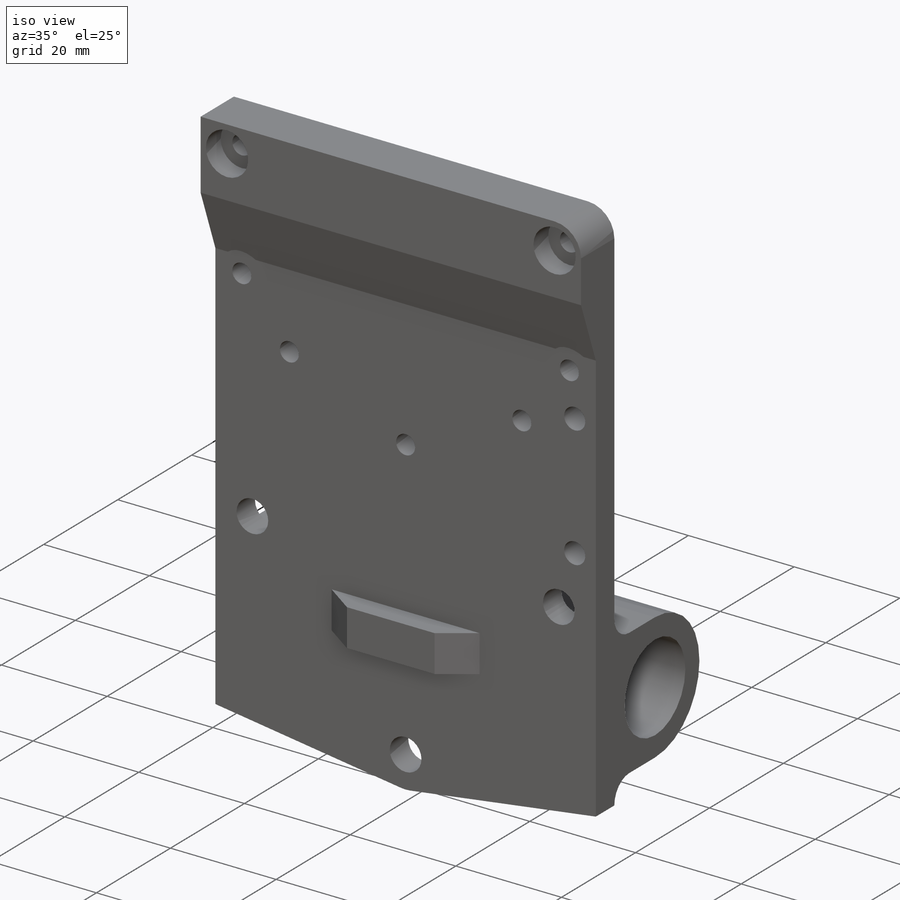
[diagram: iso view]
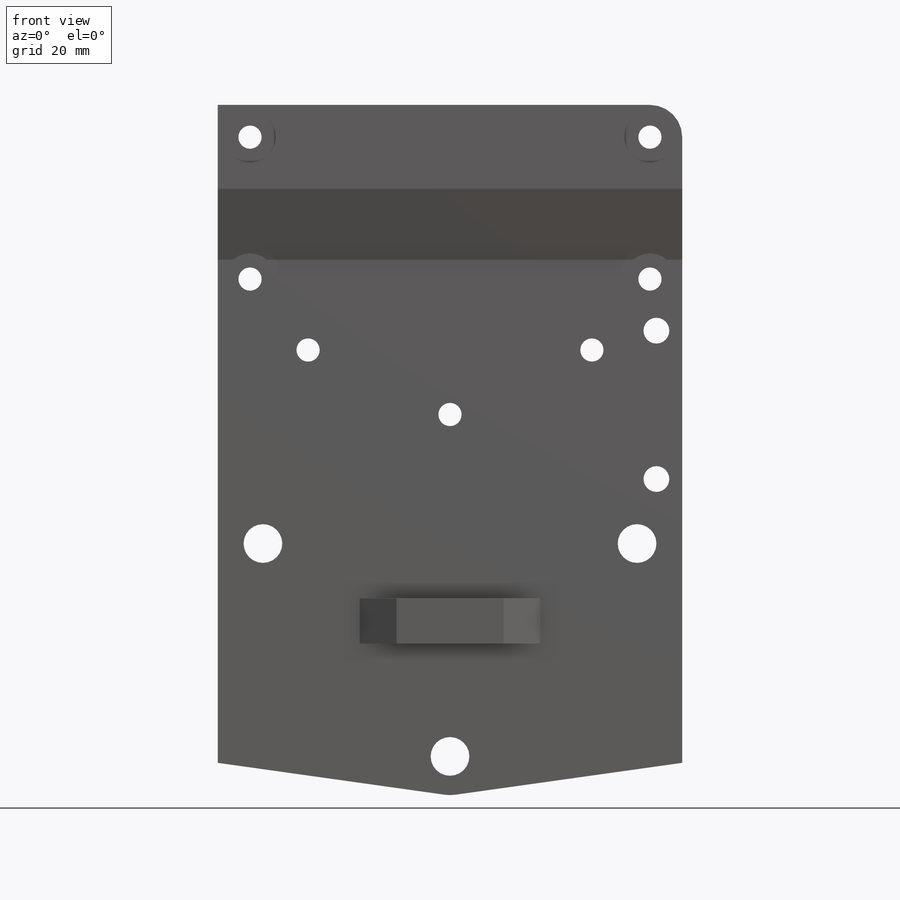
[diagram: front view]
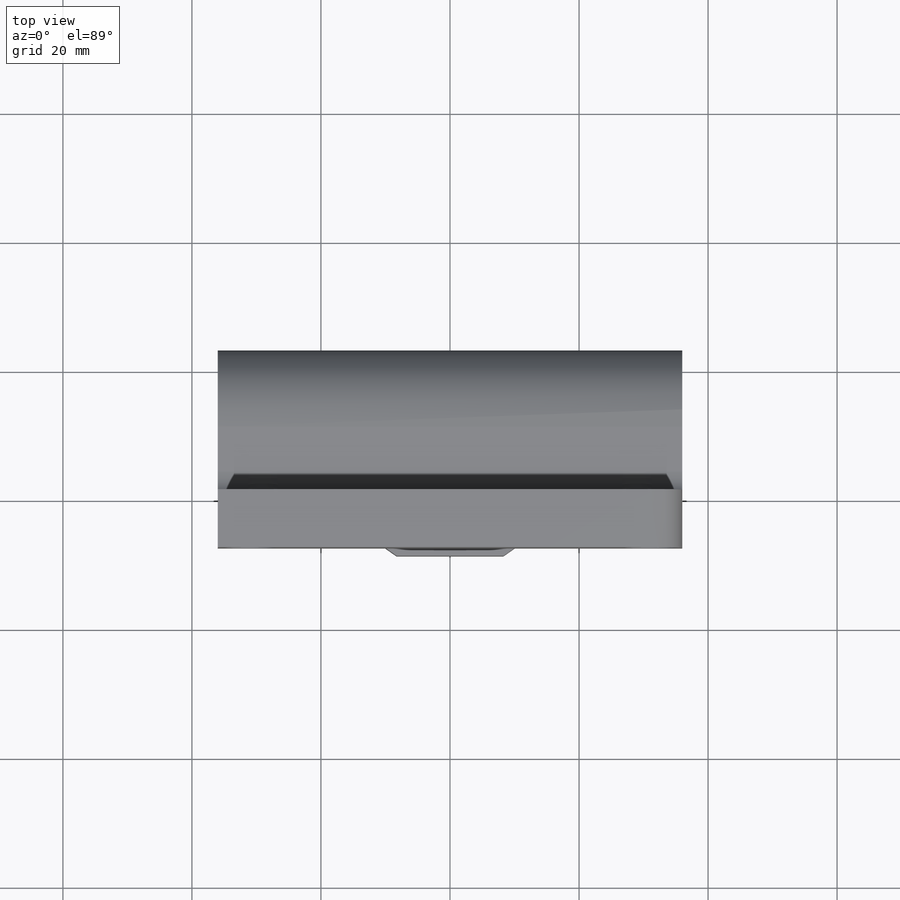
[diagram: top view]
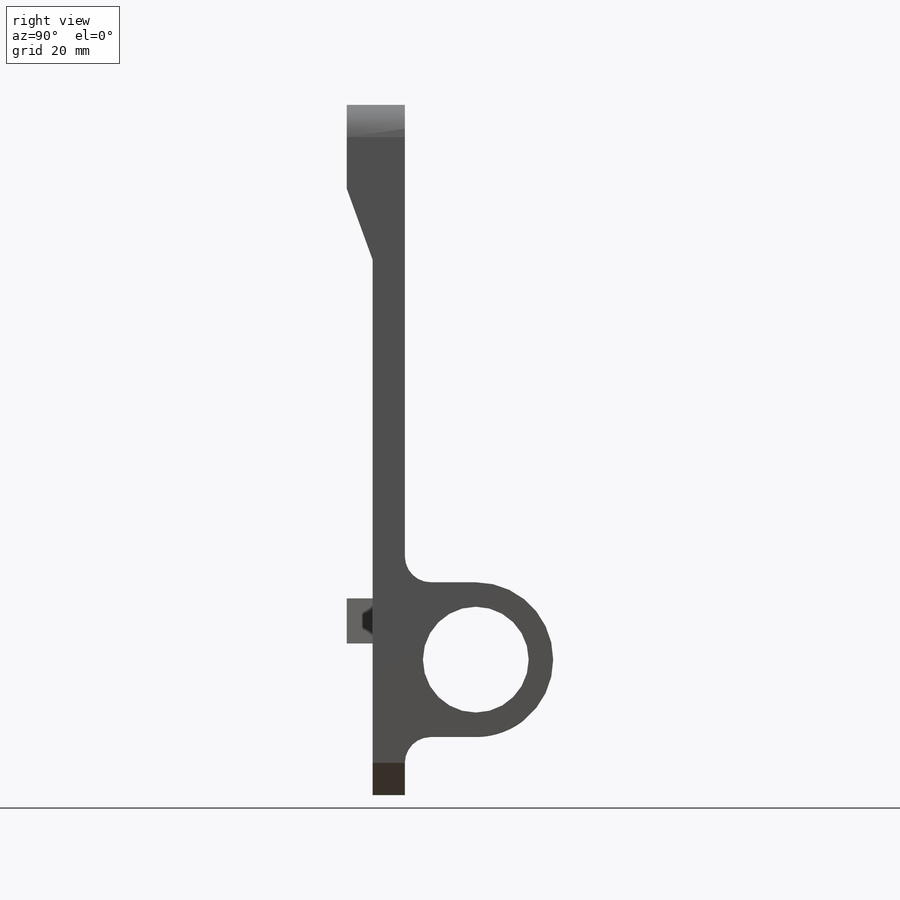
[diagram: right view]
SOLIDWORKS PART (.sldprt)
format: sldprt  version: not decoded by parser v0  size: 375,296 bytes
history: native  units: mm
features: sketch x10, extrude x5, cut_extrude x5, fillet x2, material x1 (+11 scaffold rows collapsed)
feature tree (34):
  scaffold x11  (default folders/planes/origin — collapsed)
  material  "Material <not specified>"
  sketch  "Sketch1"  dims[D1=102.0mm D2=72.0mm]
  extrude  "Boss-Extrude1"  Depth=5mm
  sketch  "Sketch12"  dims[c1.D1=4.0mm c1.D2=13.0mm c1.D3=~12.71238mm c2.D3=20.0deg]
  extrude  "Boss-Extrude4"  [1 undecoded]
  sketch  "Sketch7"  dims[c1.D7=3.6mm c1.D1=22.0mm c1.D2=20.0mm c1.D3=35.0mm c1.D4=35.0mm c1.D5=5.0mm c1.D6=5.0mm c2.D1=5.0mm c2.D2=5.0mm c2.D3=22.0mm c2.D4=5.0mm c2.D5=14.0mm c2.D6=14.0mm c2.D8=48.0mm c2.D9=38.0mm]
  cut_extrude  "Cut-Extrude4"  [1 undecoded]
  sketch  "Sketch8"  dims[D1=16.4mm D4=12.0mm D2=11.0mm D3=16.0mm]
  extrude  "Boss-Extrude2"  [1 undecoded]
  sketch  "Sketch9"  dims[c1.D1=10.0mm c1.D2=~10.248484mm c1.D6=6.0mm c2.D2=18.0mm c2.D3=15.0mm c2.D4=29.0mm c2.D5=29.0mm]
  cut_extrude  "Cut-Extrude5"  [1 undecoded]
  sketch  "Sketch10"  dims[D2=12.0mm D1=0.0mm]
  extrude  "Boss-Extrude3"  [1 undecoded]
  sketch  "Sketch11"  dims[D1=11.0mm]
  cut_extrude  "Cut-Extrude6"  [1 undecoded]
  fillet  "Fillet1"  Radius=4mm
  sketch  "Sketch13"  dims[D1=8.0mm]
  cut_extrude  "Cut-Extrude7"  [1 undecoded]
  sketch  "Sketch14"  dims[D1=4.0mm D2=51.0mm D3=28.0mm D4=4.0mm]
  cut_extrude  "Cut-Extrude8"  [1 undecoded]
  sketch  "Sketch15"  dims[c1.D1=~9.221748mm c2.D1=35.0deg c2.D2=~8.16619mm c3.D2=35.0deg c3.D3=~18.983492mm c3.D4=~21.008879mm c4.D3=14.0mm c4.D4=14.0mm c4.D5=4.0mm]
  extrude  "Boss-Extrude5"  Depth=7mm
  fillet  "Fillet2"  Radius=5mm
decode coverage: 14 of 22 modeling features carry decoded parameters
note: ~ marks probable driven/reference dimensions
note: 8 parameter values undecoded
summary: no parameter record found for 8 features
note: suppression state not decoded; provenance and decode notes live in map.json
